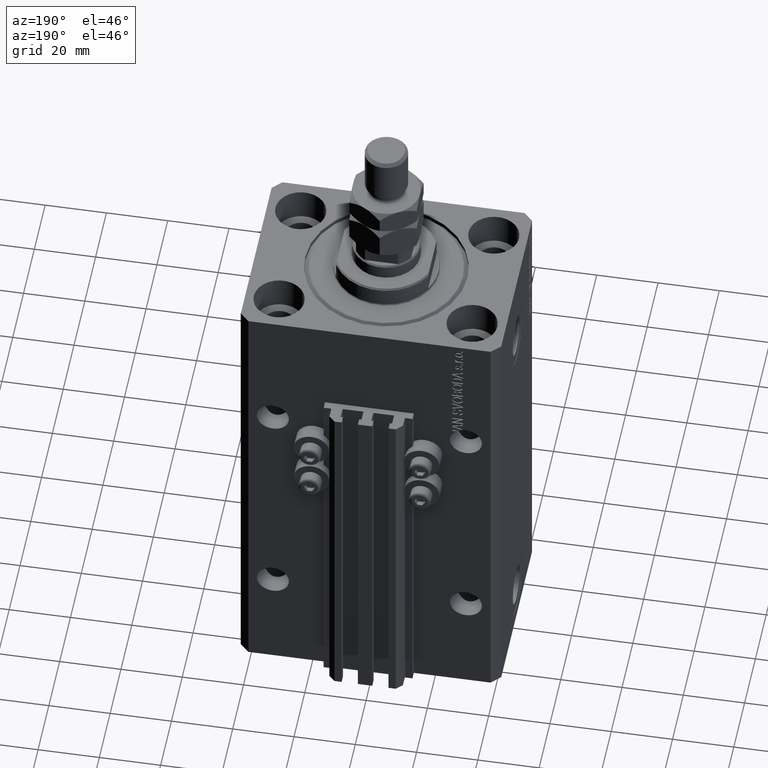
[diagram: clean part render]
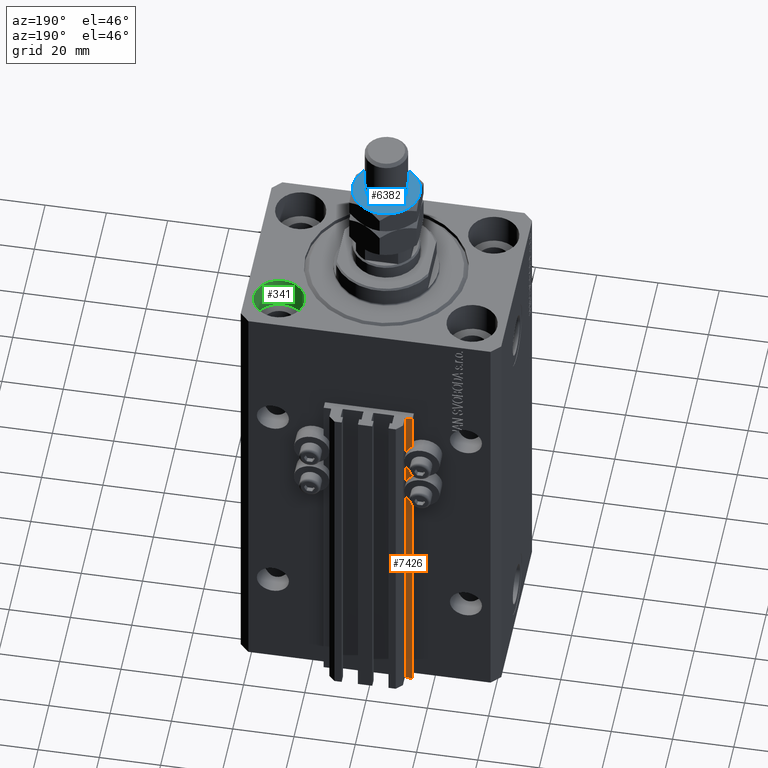
[diagram: same view with three faces highlighted in distinct colors, each labeled with its STEP entity id]
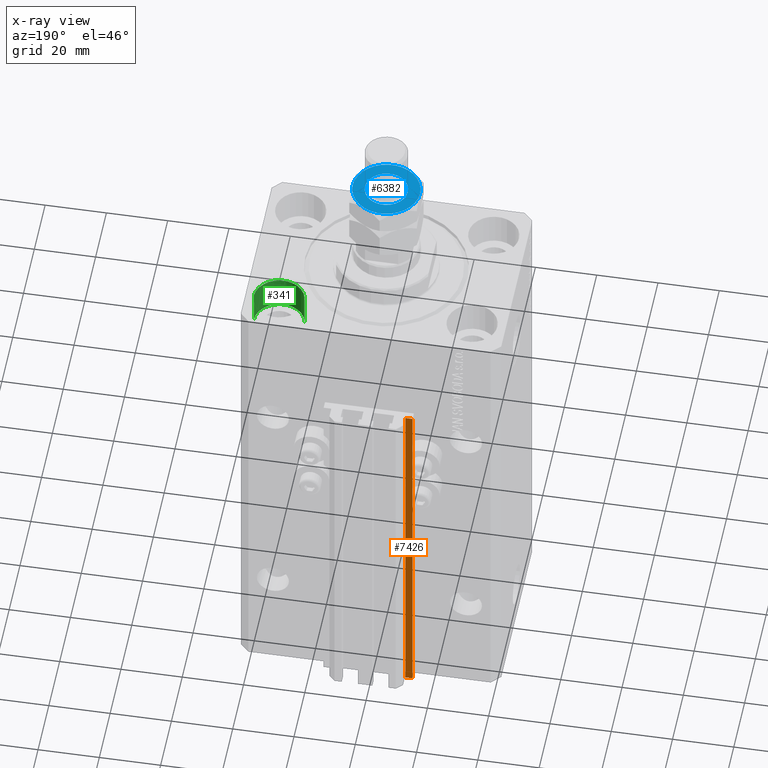
[diagram: x-ray of the same camera — body ghosted, the three highlighted faces saturated]
A machine part, auxiliary view with three faces highlighted in distinct colors.
The next image is the same camera in x-ray (body ghosted, the three faces saturated) — at least one of them is partly hidden behind the body in this view.
Their STEP definitions:

[orange] entity #7426 — the highlighted planar face has unit normal (0, 1, 0).
#724 = CARTESIAN_POINT ( 'NONE',  ( -14.50000000000000000, 33.99999999999998579, -33.00000000000000000 ) ) ;
#1565 = EDGE_CURVE ( 'NONE', #6141, #25154, #3051, .T. ) ;
#3051 = LINE ( 'NONE', #33308, #25488 ) ;
#4522 = LINE ( 'NONE', #7588, #46835 ) ;
#4592 = VERTEX_POINT ( 'NONE', #14624 ) ;
#5867 = VERTEX_POINT ( 'NONE', #15068 ) ;
#6141 = VERTEX_POINT ( 'NONE', #37649 ) ;
#7010 = EDGE_CURVE ( 'NONE', #5867, #25154, #40329, .T. ) ;
#7426 = ADVANCED_FACE ( 'NONE', ( #8787 ), #48360, .T. ) ;
#7588 = CARTESIAN_POINT ( 'NONE',  ( -12.20000000000000107, 33.99999999999998579, -153.0000000000000000 ) ) ;
#8787 = FACE_OUTER_BOUND ( 'NONE', #25280, .T. ) ;
#9908 = ORIENTED_EDGE ( 'NONE', *, *, #40358, .F. ) ;
#13049 = EDGE_CURVE ( 'NONE', #4592, #5867, #35284, .T. ) ;
#13335 = DIRECTION ( 'NONE',  ( 0.000000000000000000, 0.000000000000000000, 1.000000000000000000 ) ) ;
#13582 = CARTESIAN_POINT ( 'NONE',  ( -12.20000000000000107, 33.99999999999998579, -153.0000000000000000 ) ) ;
#14624 = CARTESIAN_POINT ( 'NONE',  ( -12.20000000000000107, 33.99999999999998579, -153.0000000000000000 ) ) ;
#15068 = CARTESIAN_POINT ( 'NONE',  ( -14.50000000000000000, 33.99999999999998579, -153.0000000000000000 ) ) ;
#16946 = CARTESIAN_POINT ( 'NONE',  ( -14.50000000000000000, 33.99999999999998579, -153.0000000000000000 ) ) ;
#17823 = VECTOR ( 'NONE', #48673, 1000.000000000000000 ) ;
#20275 = CARTESIAN_POINT ( 'NONE',  ( -12.20000000000000107, 33.99999999999998579, -153.0000000000000000 ) ) ;
#24265 = DIRECTION ( 'NONE',  ( 0.000000000000000000, 1.000000000000000000, -0.000000000000000000 ) ) ;
#24311 = ORIENTED_EDGE ( 'NONE', *, *, #7010, .T. ) ;
#25154 = VERTEX_POINT ( 'NONE', #724 ) ;
#25280 = EDGE_LOOP ( 'NONE', ( #38382, #9908, #35114, #24311 ) ) ;
#25488 = VECTOR ( 'NONE', #29248, 1000.000000000000000 ) ;
#27148 = DIRECTION ( 'NONE',  ( 0.000000000000000000, 0.000000000000000000, 1.000000000000000000 ) ) ;
#27662 = DIRECTION ( 'NONE',  ( -1.000000000000000000, 0.000000000000000000, 0.000000000000000000 ) ) ;
#29248 = DIRECTION ( 'NONE',  ( -1.000000000000000000, 0.000000000000000000, 0.000000000000000000 ) ) ;
#32456 = AXIS2_PLACEMENT_3D ( 'NONE', #13582, #24265, #13335 ) ;
#33308 = CARTESIAN_POINT ( 'NONE',  ( -12.20000000000000107, 33.99999999999998579, -33.00000000000000000 ) ) ;
#35114 = ORIENTED_EDGE ( 'NONE', *, *, #13049, .T. ) ;
#35284 = LINE ( 'NONE', #20275, #43900 ) ;
#37649 = CARTESIAN_POINT ( 'NONE',  ( -12.20000000000000107, 33.99999999999998579, -33.00000000000000000 ) ) ;
#38382 = ORIENTED_EDGE ( 'NONE', *, *, #1565, .F. ) ;
#40329 = LINE ( 'NONE', #16946, #17823 ) ;
#40358 = EDGE_CURVE ( 'NONE', #4592, #6141, #4522, .T. ) ;
#43900 = VECTOR ( 'NONE', #27662, 1000.000000000000000 ) ;
#46835 = VECTOR ( 'NONE', #27148, 1000.000000000000000 ) ;
#48360 = PLANE ( 'NONE',  #32456 ) ;
#48673 = DIRECTION ( 'NONE',  ( 0.000000000000000000, 0.000000000000000000, 1.000000000000000000 ) ) ;

[blue] entity #6382 — the highlighted planar face has unit normal (0, 0, 1).
#322 = CARTESIAN_POINT ( 'NONE',  ( -10.99999999999999289, 0.000000000000000000, 19.00000000000000000 ) ) ;
#529 = CIRCLE ( 'NONE', #34639, 10.99999999999999289 ) ;
#966 = EDGE_LOOP ( 'NONE', ( #46807, #22203, #39965, #6661, #3129, #39166 ) ) ;
#2599 = VERTEX_POINT ( 'NONE', #42971 ) ;
#2881 = DIRECTION ( 'NONE',  ( -0.000000000000000000, 0.000000000000000000, -1.000000000000000000 ) ) ;
#3078 = CARTESIAN_POINT ( 'NONE',  ( 0.000000000000000000, 0.000000000000000000, 19.00000000000000000 ) ) ;
#3129 = ORIENTED_EDGE ( 'NONE', *, *, #35133, .T. ) ;
#3550 = CARTESIAN_POINT ( 'NONE',  ( 0.000000000000000000, 0.000000000000000000, 19.00000000000000000 ) ) ;
#4654 = CIRCLE ( 'NONE', #28161, 10.99999999999999289 ) ;
#4832 = DIRECTION ( 'NONE',  ( 1.000000000000000000, 0.000000000000000000, 0.000000000000000000 ) ) ;
#5441 = DIRECTION ( 'NONE',  ( 0.000000000000000000, 0.000000000000000000, 1.000000000000000000 ) ) ;
#6165 = CARTESIAN_POINT ( 'NONE',  ( 0.000000000000000000, 0.000000000000000000, 19.00000000000000000 ) ) ;
#6382 = ADVANCED_FACE ( 'NONE', ( #14456, #25390 ), #37095, .T. ) ;
#6643 = DIRECTION ( 'NONE',  ( 0.000000000000000000, -0.000000000000000000, 1.000000000000000000 ) ) ;
#6661 = ORIENTED_EDGE ( 'NONE', *, *, #46004, .T. ) ;
#9051 = DIRECTION ( 'NONE',  ( 1.000000000000000000, 0.000000000000000000, 0.000000000000000000 ) ) ;
#10228 = DIRECTION ( 'NONE',  ( 1.000000000000000000, 0.000000000000000000, 0.000000000000000000 ) ) ;
#11457 = EDGE_CURVE ( 'NONE', #26890, #31536, #26791, .T. ) ;
#12846 = CARTESIAN_POINT ( 'NONE',  ( 0.000000000000000000, 0.000000000000000000, 19.00000000000000000 ) ) ;
#13089 = AXIS2_PLACEMENT_3D ( 'NONE', #6165, #21641, #10228 ) ;
#14456 = FACE_BOUND ( 'NONE', #17512, .T. ) ;
#17503 = CARTESIAN_POINT ( 'NONE',  ( 0.000000000000000000, 0.000000000000000000, 19.00000000000000000 ) ) ;
#17512 = EDGE_LOOP ( 'NONE', ( #35072, #38612 ) ) ;
#17855 = AXIS2_PLACEMENT_3D ( 'NONE', #35940, #5441, #36438 ) ;
#18563 = DIRECTION ( 'NONE',  ( 0.000000000000000000, -0.000000000000000000, 1.000000000000000000 ) ) ;
#19354 = DIRECTION ( 'NONE',  ( 1.000000000000000000, 0.000000000000000000, 0.000000000000000000 ) ) ;
#19830 = AXIS2_PLACEMENT_3D ( 'NONE', #33045, #40167, #28986 ) ;
#20671 = EDGE_CURVE ( 'NONE', #2599, #42661, #28748, .T. ) ;
#21641 = DIRECTION ( 'NONE',  ( 0.000000000000000000, -0.000000000000000000, 1.000000000000000000 ) ) ;
#22131 = CARTESIAN_POINT ( 'NONE',  ( -5.499999999999997335, 9.526279441628819455, 19.00000000000000000 ) ) ;
#22203 = ORIENTED_EDGE ( 'NONE', *, *, #11457, .T. ) ;
#22639 = AXIS2_PLACEMENT_3D ( 'NONE', #17503, #33017, #48481 ) ;
#23559 = AXIS2_PLACEMENT_3D ( 'NONE', #3078, #18563, #4832 ) ;
#25390 = FACE_OUTER_BOUND ( 'NONE', #966, .T. ) ;
#26769 = CARTESIAN_POINT ( 'NONE',  ( 0.000000000000000000, 0.000000000000000000, 19.00000000000000000 ) ) ;
#26791 = CIRCLE ( 'NONE', #17855, 10.99999999999999289 ) ;
#26870 = CIRCLE ( 'NONE', #13089, 10.99999999999999289 ) ;
#26890 = VERTEX_POINT ( 'NONE', #29854 ) ;
#26934 = DIRECTION ( 'NONE',  ( 1.000000000000000000, 0.000000000000000000, 0.000000000000000000 ) ) ;
#28161 = AXIS2_PLACEMENT_3D ( 'NONE', #26769, #38213, #34633 ) ;
#28748 = CIRCLE ( 'NONE', #19830, 10.99999999999999289 ) ;
#28986 = DIRECTION ( 'NONE',  ( 1.000000000000000000, 0.000000000000000000, 0.000000000000000000 ) ) ;
#29372 = CARTESIAN_POINT ( 'NONE',  ( 5.499999999999998224, -9.526279441628817679, 19.00000000000000000 ) ) ;
#29832 = AXIS2_PLACEMENT_3D ( 'NONE', #12846, #43833, #9051 ) ;
#29854 = CARTESIAN_POINT ( 'NONE',  ( 10.99999999999999289, 1.502314598737159031E-15, 19.00000000000000000 ) ) ;
#30556 = EDGE_CURVE ( 'NONE', #42661, #26890, #4654, .T. ) ;
#31536 = VERTEX_POINT ( 'NONE', #33217 ) ;
#32305 = CARTESIAN_POINT ( 'NONE',  ( 7.000000000000000888, 0.000000000000000000, 19.00000000000000000 ) ) ;
#33017 = DIRECTION ( 'NONE',  ( 0.000000000000000000, -0.000000000000000000, 1.000000000000000000 ) ) ;
#33045 = CARTESIAN_POINT ( 'NONE',  ( 0.000000000000000000, 0.000000000000000000, 19.00000000000000000 ) ) ;
#33217 = CARTESIAN_POINT ( 'NONE',  ( 5.499999999999999112, 9.526279441628817679, 19.00000000000000000 ) ) ;
#34633 = DIRECTION ( 'NONE',  ( 1.000000000000000000, 0.000000000000000000, 0.000000000000000000 ) ) ;
#34639 = AXIS2_PLACEMENT_3D ( 'NONE', #3550, #6643, #26934 ) ;
#35072 = ORIENTED_EDGE ( 'NONE', *, *, #39601, .T. ) ;
#35091 = VERTEX_POINT ( 'NONE', #32305 ) ;
#35133 = EDGE_CURVE ( 'NONE', #49310, #2599, #529, .T. ) ;
#35713 = EDGE_CURVE ( 'NONE', #45919, #35091, #39542, .T. ) ;
#35940 = CARTESIAN_POINT ( 'NONE',  ( 0.000000000000000000, 0.000000000000000000, 19.00000000000000000 ) ) ;
#36438 = DIRECTION ( 'NONE',  ( 1.000000000000000000, 0.000000000000000000, 0.000000000000000000 ) ) ;
#36774 = VERTEX_POINT ( 'NONE', #22131 ) ;
#37095 = PLANE ( 'NONE',  #22639 ) ;
#37125 = CIRCLE ( 'NONE', #29832, 7.000000000000000888 ) ;
#37129 = AXIS2_PLACEMENT_3D ( 'NONE', #37953, #2881, #19354 ) ;
#37953 = CARTESIAN_POINT ( 'NONE',  ( 0.000000000000000000, 0.000000000000000000, 19.00000000000000000 ) ) ;
#38213 = DIRECTION ( 'NONE',  ( 0.000000000000000000, -0.000000000000000000, 1.000000000000000000 ) ) ;
#38612 = ORIENTED_EDGE ( 'NONE', *, *, #35713, .T. ) ;
#39166 = ORIENTED_EDGE ( 'NONE', *, *, #20671, .T. ) ;
#39542 = CIRCLE ( 'NONE', #37129, 7.000000000000000888 ) ;
#39601 = EDGE_CURVE ( 'NONE', #35091, #45919, #37125, .T. ) ;
#39965 = ORIENTED_EDGE ( 'NONE', *, *, #48304, .T. ) ;
#40167 = DIRECTION ( 'NONE',  ( 0.000000000000000000, -0.000000000000000000, 1.000000000000000000 ) ) ;
#42178 = CARTESIAN_POINT ( 'NONE',  ( -7.000000000000000888, 8.572527594031474176E-16, 19.00000000000000000 ) ) ;
#42661 = VERTEX_POINT ( 'NONE', #29372 ) ;
#42971 = CARTESIAN_POINT ( 'NONE',  ( -5.500000000000000000, -9.526279441628824785, 19.00000000000000000 ) ) ;
#43833 = DIRECTION ( 'NONE',  ( -0.000000000000000000, 0.000000000000000000, -1.000000000000000000 ) ) ;
#45919 = VERTEX_POINT ( 'NONE', #42178 ) ;
#46004 = EDGE_CURVE ( 'NONE', #36774, #49310, #47887, .T. ) ;
#46807 = ORIENTED_EDGE ( 'NONE', *, *, #30556, .T. ) ;
#47887 = CIRCLE ( 'NONE', #23559, 10.99999999999999289 ) ;
#48304 = EDGE_CURVE ( 'NONE', #31536, #36774, #26870, .T. ) ;
#48481 = DIRECTION ( 'NONE',  ( 1.000000000000000000, 0.000000000000000000, -0.000000000000000000 ) ) ;
#49310 = VERTEX_POINT ( 'NONE', #322 ) ;

[green] entity #341 — the highlighted cylindrical surface (edge-blend (fillet) strip) has radius 8.25 mm, axis along (0, 0, 1).
#341 = ADVANCED_FACE ( 'NONE', ( #14465 ), #29975, .F. ) ;
#2044 = AXIS2_PLACEMENT_3D ( 'NONE', #30628, #18426, #3185 ) ;
#3185 = DIRECTION ( 'NONE',  ( 1.000000000000000000, 0.000000000000000000, 0.000000000000000000 ) ) ;
#3972 = EDGE_CURVE ( 'NONE', #16841, #20161, #9143, .T. ) ;
#4603 = EDGE_CURVE ( 'NONE', #11582, #20161, #39411, .T. ) ;
#5146 = EDGE_CURVE ( 'NONE', #15171, #11582, #44237, .T. ) ;
#5329 = CARTESIAN_POINT ( 'NONE',  ( 39.74999999999999289, 20.00000000000001066, -11.00000000000000000 ) ) ;
#5388 = DIRECTION ( 'NONE',  ( -0.000000000000000000, -0.000000000000000000, 1.000000000000000000 ) ) ;
#5601 = ORIENTED_EDGE ( 'NONE', *, *, #29664, .F. ) ;
#8689 = CARTESIAN_POINT ( 'NONE',  ( 23.25000000000000355, 20.00000000000001066, -11.00000000000000000 ) ) ;
#9143 = LINE ( 'NONE', #5329, #39372 ) ;
#11582 = VERTEX_POINT ( 'NONE', #17541 ) ;
#13246 = CARTESIAN_POINT ( 'NONE',  ( 23.25000000000000355, 20.00000000000001066, -11.00000000000000000 ) ) ;
#14465 = FACE_OUTER_BOUND ( 'NONE', #26379, .T. ) ;
#15171 = VERTEX_POINT ( 'NONE', #8689 ) ;
#15693 = DIRECTION ( 'NONE',  ( -0.000000000000000000, -0.000000000000000000, 1.000000000000000000 ) ) ;
#16841 = VERTEX_POINT ( 'NONE', #16938 ) ;
#16938 = CARTESIAN_POINT ( 'NONE',  ( 39.74999999999999289, 20.00000000000001066, -11.00000000000000000 ) ) ;
#17541 = CARTESIAN_POINT ( 'NONE',  ( 23.25000000000000355, 20.00000000000001066, 0.000000000000000000 ) ) ;
#18426 = DIRECTION ( 'NONE',  ( 0.000000000000000000, 0.000000000000000000, 1.000000000000000000 ) ) ;
#19949 = VECTOR ( 'NONE', #5388, 1000.000000000000000 ) ;
#20161 = VERTEX_POINT ( 'NONE', #45097 ) ;
#21563 = DIRECTION ( 'NONE',  ( -0.000000000000000000, -0.000000000000000000, 1.000000000000000000 ) ) ;
#22382 = ORIENTED_EDGE ( 'NONE', *, *, #3972, .F. ) ;
#23380 = ORIENTED_EDGE ( 'NONE', *, *, #5146, .T. ) ;
#24045 = AXIS2_PLACEMENT_3D ( 'NONE', #31565, #42986, #36142 ) ;
#25444 = ORIENTED_EDGE ( 'NONE', *, *, #4603, .T. ) ;
#26379 = EDGE_LOOP ( 'NONE', ( #5601, #23380, #25444, #22382 ) ) ;
#29664 = EDGE_CURVE ( 'NONE', #15171, #16841, #35451, .T. ) ;
#29975 = CYLINDRICAL_SURFACE ( 'NONE', #48964, 8.249999999999992895 ) ;
#30628 = CARTESIAN_POINT ( 'NONE',  ( 31.50000000000000000, 20.00000000000001066, 0.000000000000000000 ) ) ;
#31565 = CARTESIAN_POINT ( 'NONE',  ( 31.50000000000000000, 20.00000000000001066, -11.00000000000000000 ) ) ;
#31713 = DIRECTION ( 'NONE',  ( 1.000000000000000000, 0.000000000000000000, 0.000000000000000000 ) ) ;
#35451 = CIRCLE ( 'NONE', #24045, 8.249999999999992895 ) ;
#36142 = DIRECTION ( 'NONE',  ( 1.000000000000000000, 0.000000000000000000, 0.000000000000000000 ) ) ;
#39372 = VECTOR ( 'NONE', #21563, 1000.000000000000000 ) ;
#39411 = CIRCLE ( 'NONE', #2044, 8.249999999999992895 ) ;
#42986 = DIRECTION ( 'NONE',  ( 0.000000000000000000, 0.000000000000000000, 1.000000000000000000 ) ) ;
#44237 = LINE ( 'NONE', #13246, #19949 ) ;
#45097 = CARTESIAN_POINT ( 'NONE',  ( 39.74999999999999289, 20.00000000000001066, 0.000000000000000000 ) ) ;
#45452 = CARTESIAN_POINT ( 'NONE',  ( 31.50000000000000000, 20.00000000000001066, -11.00000000000000000 ) ) ;
#48964 = AXIS2_PLACEMENT_3D ( 'NONE', #45452, #15693, #31713 ) ;